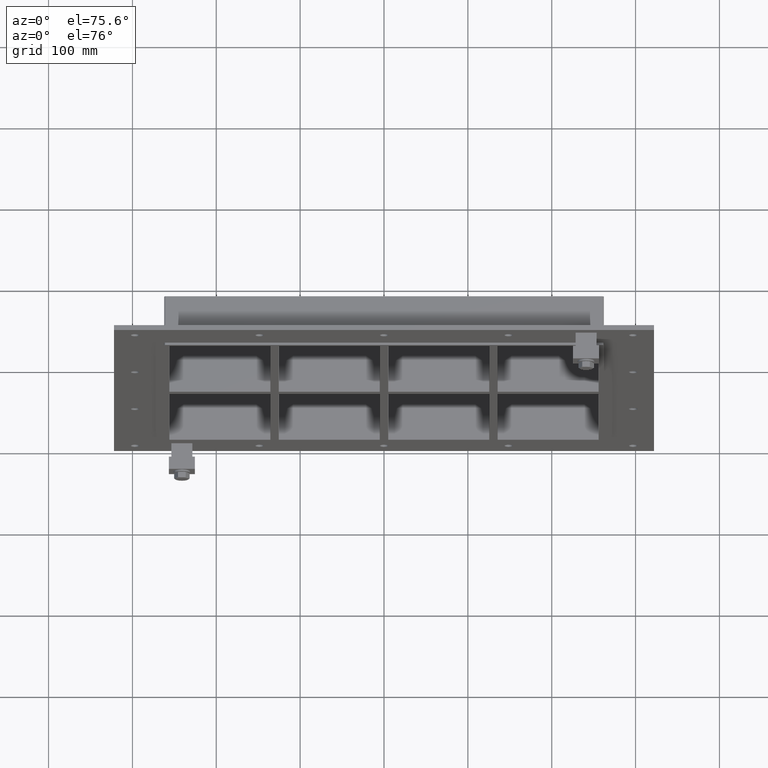
[diagram: clean part render]
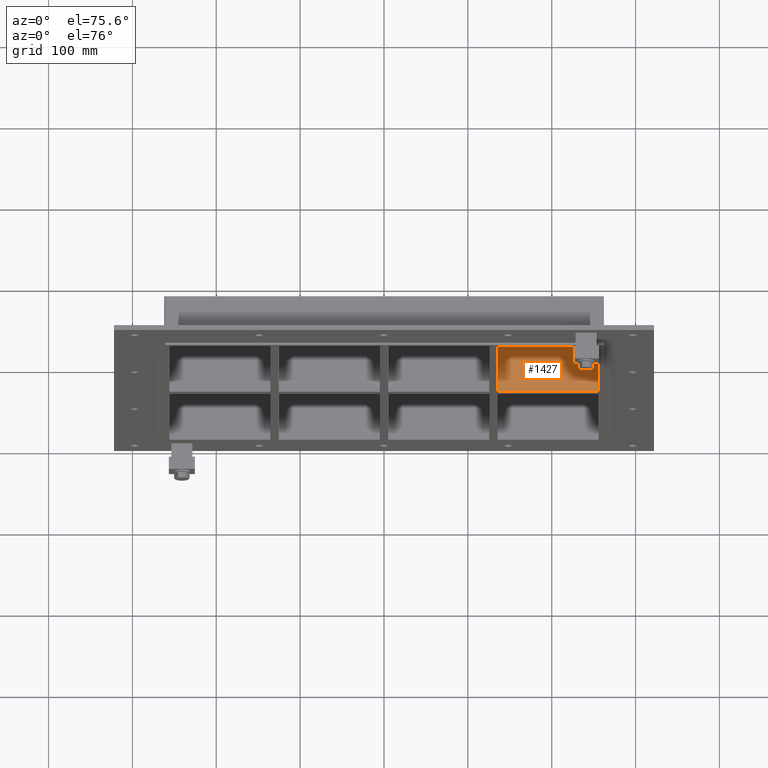
[diagram: same view with one face highlighted and labeled with its STEP entity id]
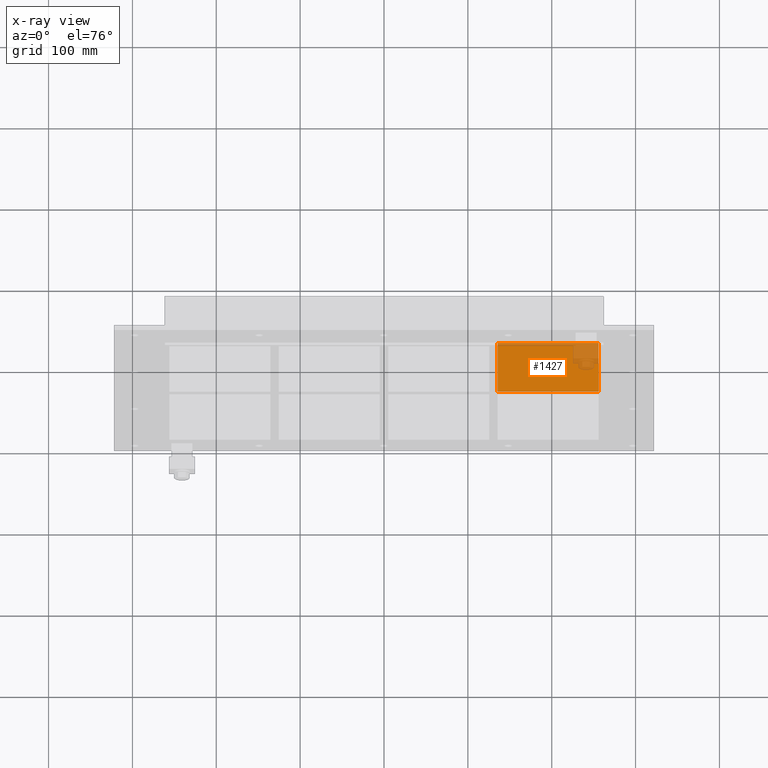
[diagram: x-ray of the same camera — body ghosted, the highlighted face saturated]
A machine part, auxiliary view. The second image highlights one B-rep face of the part: STEP entity #1427.
The next image is the same camera in x-ray: the body ghosted, the highlighted face saturated — about 17% of this face is hidden behind the body in this view.
In plain terms, the highlighted planar face has unit normal (0, 0, 1).
Its self-contained STEP definition (entity closure, byte-faithful):
#545=CARTESIAN_POINT('',(135.50000000000728,57.0,6.000000000000227));
#546=VERTEX_POINT('',#545);
#547=CARTESIAN_POINT('',(135.50000000000728,-3.0,6.000000000000227));
#548=VERTEX_POINT('',#547);
#549=CARTESIAN_POINT('',(135.50000000000728,57.0,6.000000000000227));
#550=DIRECTION('',(0.0,-1.0,0.0));
#551=VECTOR('',#550,60.0);
#552=LINE('',#549,#551);
#553=EDGE_CURVE('',#546,#548,#552,.T.);
#1018=CARTESIAN_POINT('',(255.99999999999955,-3.0,6.000000000000227));
#1019=VERTEX_POINT('',#1018);
#1026=CARTESIAN_POINT('',(135.5000000000073,-3.0,6.000000000000227));
#1027=DIRECTION('',(1.0,0.0,0.0));
#1028=VECTOR('',#1027,120.49999999999221);
#1029=LINE('',#1026,#1028);
#1030=EDGE_CURVE('',#548,#1019,#1029,.T.);
#1237=CARTESIAN_POINT('',(255.99999999999952,57.0,6.000000000000227));
#1238=VERTEX_POINT('',#1237);
#1239=CARTESIAN_POINT('',(135.5000000000073,57.0,6.000000000000227));
#1240=DIRECTION('',(1.0,0.0,0.0));
#1241=VECTOR('',#1240,120.49999999999221);
#1242=LINE('',#1239,#1241);
#1243=EDGE_CURVE('',#546,#1238,#1242,.T.);
#1411=CARTESIAN_POINT('',(-255.99999999999866,-3.0,6.000000000000227));
#1412=DIRECTION('',(0.0,0.0,1.0));
#1413=DIRECTION('',(1.0,0.0,0.0));
#1414=AXIS2_PLACEMENT_3D('',#1411,#1412,#1413);
#1415=PLANE('',#1414);
#1416=ORIENTED_EDGE('',*,*,#553,.T.);
#1417=ORIENTED_EDGE('',*,*,#1030,.T.);
#1418=CARTESIAN_POINT('',(255.99999999999994,57.000000000000007,6.000000000000227));
#1419=DIRECTION('',(0.0,-1.0,0.0));
#1420=VECTOR('',#1419,60.000000000000007);
#1421=LINE('',#1418,#1420);
#1422=EDGE_CURVE('',#1238,#1019,#1421,.T.);
#1423=ORIENTED_EDGE('',*,*,#1422,.F.);
#1424=ORIENTED_EDGE('',*,*,#1243,.F.);
#1425=EDGE_LOOP('',(#1416,#1417,#1423,#1424));
#1426=FACE_OUTER_BOUND('',#1425,.T.);
#1427=ADVANCED_FACE('',(#1426),#1415,.T.);